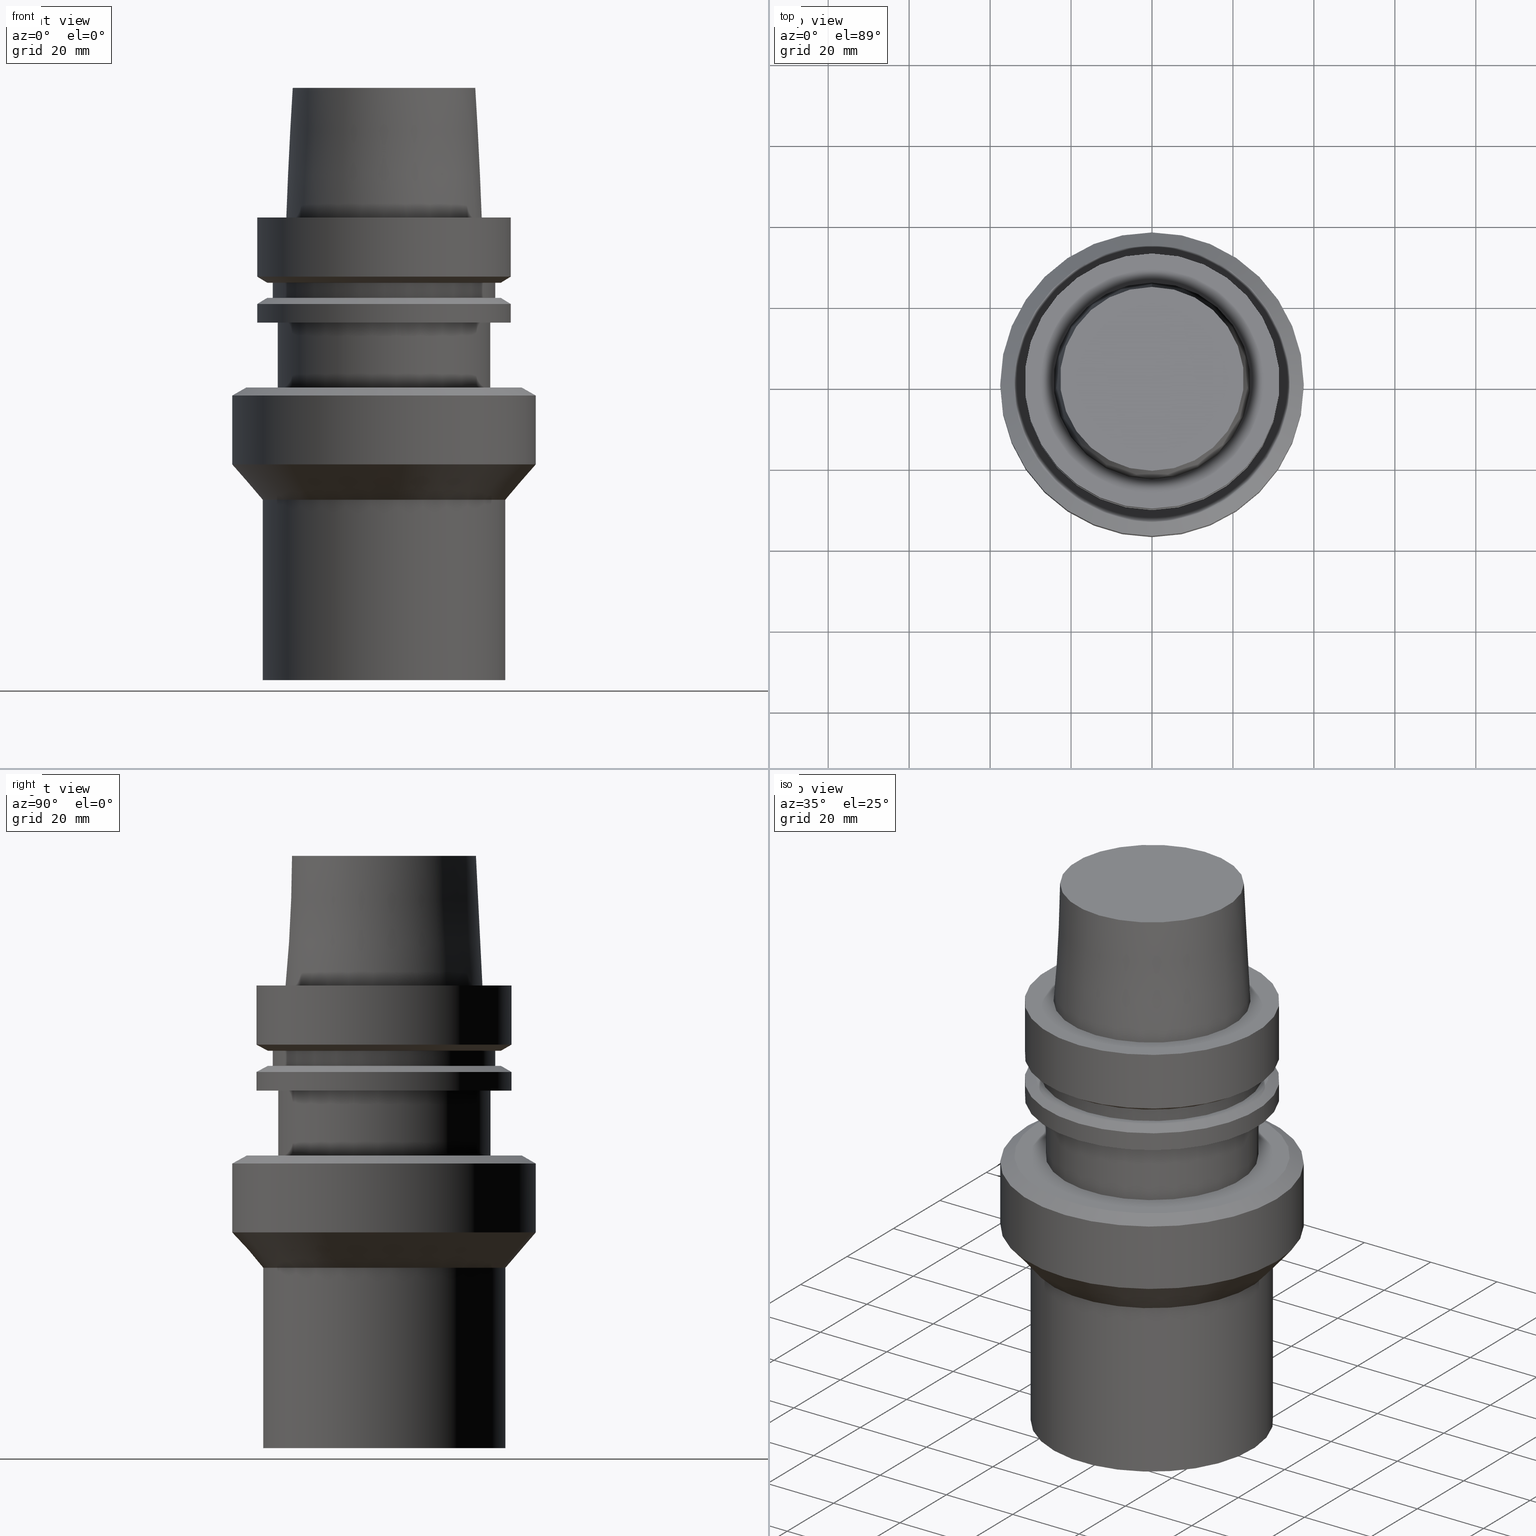
[diagram: canonical four-view strip — front | top / right | iso, engineering-drawing reading convention]
A machine part, canonical four-view strip (front | top / right | iso — engineering-drawing reading convention). The complete STEP part file that produces these views, byte-faithful:
ISO-10303-21;
HEADER;
FILE_DESCRIPTION((''),'1');
FILE_NAME('V:/90_\X2\53D65F9730C730FC30BF\X0\/00_\X2\6DE18DEF30C730FC30BF\X0\/ALL/HSK-BKUS\X2\52A05DE556F3\X0\_201801/HSK-A63-HDC/HSK-A63-HDC1.250-4.5.stp','2018-02-01T05:26:58',(''),(''),'Spatial Interop R21 SP3','Kubotek KeyCreator 2011 V10.0.2 (22737)',' ');
FILE_SCHEMA(('automotive_design'));
ENDSEC;
DATA;
#1=MECHANICAL_DESIGN_GEOMETRIC_PRESENTATION_REPRESENTATION(' ',(#10,#11,#12,#13,#14,#15,#16,#17,#18,#19,#20,#21,#22,#23,#24,#25,#26,#27,#28,#29,#30,#31,#32,#33,#34,#35,#36,#37,#38,#39,#40,#41,#42,#43,#44,#45),#6);
#2=PRODUCT_DEFINITION_CONTEXT('',#46,'design');
#3=APPLICATION_PROTOCOL_DEFINITION('INTERNATIONAL STANDARD','automotive_design',1994,#46);
#4=PRODUCT_CATEGORY_RELATIONSHIP('NONE','NONE',#47,#48);
#5=SHAPE_DEFINITION_REPRESENTATION(#49,#50);
#6= (GEOMETRIC_REPRESENTATION_CONTEXT(3)GLOBAL_UNCERTAINTY_ASSIGNED_CONTEXT((#53))GLOBAL_UNIT_ASSIGNED_CONTEXT((#55,#56,#57))REPRESENTATION_CONTEXT('NONE','WORKSPACE'));
#10=STYLED_ITEM('',(#59),#60);
#11=STYLED_ITEM('',(#61),#62);
#12=STYLED_ITEM('',(#63,#64),#65);
#13=STYLED_ITEM('',(#66,#67),#68);
#14=STYLED_ITEM('',(#69,#70),#71);
#15=STYLED_ITEM('',(#72,#73),#74);
#16=STYLED_ITEM('',(#75),#76);
#17=STYLED_ITEM('',(#77),#78);
#18=STYLED_ITEM('',(#79,#80),#81);
#19=STYLED_ITEM('',(#82,#83),#84);
#20=STYLED_ITEM('',(#85,#86),#87);
#21=STYLED_ITEM('',(#88,#89),#90);
#22=STYLED_ITEM('',(#91,#92),#93);
#23=STYLED_ITEM('',(#94,#95),#96);
#24=STYLED_ITEM('',(#97,#98),#99);
#25=STYLED_ITEM('',(#100),#101);
#26=STYLED_ITEM('',(#102),#103);
#27=STYLED_ITEM('',(#104,#105),#106);
#28=STYLED_ITEM('',(#107),#108);
#29=STYLED_ITEM('',(#109,#110),#111);
#30=STYLED_ITEM('',(#112,#113),#114);
#31=STYLED_ITEM('',(#115),#116);
#32=STYLED_ITEM('',(#117),#118);
#33=STYLED_ITEM('',(#119,#120),#121);
#34=STYLED_ITEM('',(#122),#123);
#35=STYLED_ITEM('',(#124),#125);
#36=STYLED_ITEM('',(#126),#127);
#37=STYLED_ITEM('',(#128,#129),#130);
#38=STYLED_ITEM('',(#131,#132),#133);
#39=STYLED_ITEM('',(#134),#135);
#40=STYLED_ITEM('',(#136,#137),#138);
#41=STYLED_ITEM('',(#139),#140);
#42=STYLED_ITEM('',(#141),#142);
#43=STYLED_ITEM('',(#143,#144),#145);
#44=STYLED_ITEM('',(#146),#147);
#45=STYLED_ITEM('',(#148),#149);
#46=APPLICATION_CONTEXT(' ');
#47=PRODUCT_CATEGORY('part','NONE');
#48=PRODUCT_RELATED_PRODUCT_CATEGORY('detail',' ',(#150));
#49=PRODUCT_DEFINITION_SHAPE('NONE','NONE',#151);
#50=ADVANCED_BREP_SHAPE_REPRESENTATION('Unnamed[1]',(#130,#152),#6);
#53=UNCERTAINTY_MEASURE_WITH_UNIT(LENGTH_MEASURE(1.0E-006),#55,'','');
#55= (CONVERSION_BASED_UNIT('MILLIMETRE',#155)LENGTH_UNIT()NAMED_UNIT(#158));
#56= (NAMED_UNIT(#160)PLANE_ANGLE_UNIT()SI_UNIT($,.RADIAN.));
#57= (NAMED_UNIT(#160)SOLID_ANGLE_UNIT()SI_UNIT($,.STERADIAN.));
#59=PRESENTATION_STYLE_ASSIGNMENT((#166));
#60=EDGE_CURVE('Unnamed[1]',#167,#167,#168,.T.);
#61=PRESENTATION_STYLE_ASSIGNMENT((#169));
#62=EDGE_CURVE('Unnamed[1]',#170,#170,#171,.T.);
#63=PRESENTATION_STYLE_ASSIGNMENT((#172));
#64=PRESENTATION_STYLE_ASSIGNMENT((#173));
#65=ADVANCED_FACE('Unnamed[1]',(#174,#175),#176,.T.);
#66=PRESENTATION_STYLE_ASSIGNMENT((#177));
#67=PRESENTATION_STYLE_ASSIGNMENT((#178));
#68=ADVANCED_FACE('Unnamed[1]',(#179,#180),#181,.T.);
#69=PRESENTATION_STYLE_ASSIGNMENT((#182));
#70=PRESENTATION_STYLE_ASSIGNMENT((#183));
#71=ADVANCED_FACE('Unnamed[1]',(#184),#185,.T.);
#72=PRESENTATION_STYLE_ASSIGNMENT((#186));
#73=PRESENTATION_STYLE_ASSIGNMENT((#187));
#74=ADVANCED_FACE('Unnamed[1]',(#188,#189),#190,.T.);
#75=PRESENTATION_STYLE_ASSIGNMENT((#191));
#76=EDGE_CURVE('Unnamed[1]',#192,#192,#193,.T.);
#77=PRESENTATION_STYLE_ASSIGNMENT((#194));
#78=EDGE_CURVE('Unnamed[1]',#195,#195,#196,.T.);
#79=PRESENTATION_STYLE_ASSIGNMENT((#197));
#80=PRESENTATION_STYLE_ASSIGNMENT((#198));
#81=ADVANCED_FACE('Unnamed[1]',(#199,#200),#201,.T.);
#82=PRESENTATION_STYLE_ASSIGNMENT((#202));
#83=PRESENTATION_STYLE_ASSIGNMENT((#203));
#84=ADVANCED_FACE('Unnamed[1]',(#204,#205),#206,.T.);
#85=PRESENTATION_STYLE_ASSIGNMENT((#207));
#86=PRESENTATION_STYLE_ASSIGNMENT((#208));
#87=ADVANCED_FACE('Unnamed[1]',(#209,#210),#211,.T.);
#88=PRESENTATION_STYLE_ASSIGNMENT((#212));
#89=PRESENTATION_STYLE_ASSIGNMENT((#213));
#90=ADVANCED_FACE('Unnamed[1]',(#214,#215),#216,.T.);
#91=PRESENTATION_STYLE_ASSIGNMENT((#217));
#92=PRESENTATION_STYLE_ASSIGNMENT((#218));
#93=ADVANCED_FACE('Unnamed[1]',(#219,#220),#221,.T.);
#94=PRESENTATION_STYLE_ASSIGNMENT((#222));
#95=PRESENTATION_STYLE_ASSIGNMENT((#223));
#96=ADVANCED_FACE('Unnamed[1]',(#224,#225),#226,.T.);
#97=PRESENTATION_STYLE_ASSIGNMENT((#227));
#98=PRESENTATION_STYLE_ASSIGNMENT((#228));
#99=ADVANCED_FACE('Unnamed[1]',(#229,#230),#231,.T.);
#100=PRESENTATION_STYLE_ASSIGNMENT((#232));
#101=EDGE_CURVE('Unnamed[1]',#233,#233,#234,.T.);
#102=PRESENTATION_STYLE_ASSIGNMENT((#235));
#103=EDGE_CURVE('Unnamed[1]',#236,#236,#237,.T.);
#104=PRESENTATION_STYLE_ASSIGNMENT((#238));
#105=PRESENTATION_STYLE_ASSIGNMENT((#239));
#106=ADVANCED_FACE('Unnamed[1]',(#240,#241),#242,.T.);
#107=PRESENTATION_STYLE_ASSIGNMENT((#243));
#108=EDGE_CURVE('Unnamed[1]',#244,#244,#245,.T.);
#109=PRESENTATION_STYLE_ASSIGNMENT((#246));
#110=PRESENTATION_STYLE_ASSIGNMENT((#247));
#111=ADVANCED_FACE('Unnamed[1]',(#248,#249),#250,.T.);
#112=PRESENTATION_STYLE_ASSIGNMENT((#251));
#113=PRESENTATION_STYLE_ASSIGNMENT((#252));
#114=ADVANCED_FACE('Unnamed[1]',(#253,#254),#255,.T.);
#115=PRESENTATION_STYLE_ASSIGNMENT((#256));
#116=EDGE_CURVE('Unnamed[1]',#257,#257,#258,.T.);
#117=PRESENTATION_STYLE_ASSIGNMENT((#259));
#118=EDGE_CURVE('Unnamed[1]',#260,#260,#261,.T.);
#119=PRESENTATION_STYLE_ASSIGNMENT((#262));
#120=PRESENTATION_STYLE_ASSIGNMENT((#263));
#121=ADVANCED_FACE('Unnamed[1]',(#264,#265),#266,.T.);
#122=PRESENTATION_STYLE_ASSIGNMENT((#267));
#123=EDGE_CURVE('Unnamed[1]',#268,#268,#269,.T.);
#124=PRESENTATION_STYLE_ASSIGNMENT((#270));
#125=EDGE_CURVE('Unnamed[1]',#271,#271,#272,.T.);
#126=PRESENTATION_STYLE_ASSIGNMENT((#273));
#127=EDGE_CURVE('Unnamed[1]',#274,#274,#275,.T.);
#128=PRESENTATION_STYLE_ASSIGNMENT((#276));
#129=PRESENTATION_STYLE_ASSIGNMENT((#277));
#130=MANIFOLD_SOLID_BREP('Unnamed[1]',#278);
#131=PRESENTATION_STYLE_ASSIGNMENT((#279));
#132=PRESENTATION_STYLE_ASSIGNMENT((#280));
#133=ADVANCED_FACE('Unnamed[1]',(#281,#282),#283,.T.);
#134=PRESENTATION_STYLE_ASSIGNMENT((#284));
#135=EDGE_CURVE('Unnamed[1]',#285,#285,#286,.T.);
#136=PRESENTATION_STYLE_ASSIGNMENT((#287));
#137=PRESENTATION_STYLE_ASSIGNMENT((#288));
#138=ADVANCED_FACE('Unnamed[1]',(#289,#290),#291,.T.);
#139=PRESENTATION_STYLE_ASSIGNMENT((#292));
#140=EDGE_CURVE('Unnamed[1]',#293,#293,#294,.T.);
#141=PRESENTATION_STYLE_ASSIGNMENT((#295));
#142=EDGE_CURVE('Unnamed[1]',#296,#296,#297,.T.);
#143=PRESENTATION_STYLE_ASSIGNMENT((#298));
#144=PRESENTATION_STYLE_ASSIGNMENT((#299));
#145=ADVANCED_FACE('Unnamed[1]',(#300),#301,.T.);
#146=PRESENTATION_STYLE_ASSIGNMENT((#302));
#147=EDGE_CURVE('Unnamed[1]',#303,#303,#304,.T.);
#148=PRESENTATION_STYLE_ASSIGNMENT((#305));
#149=EDGE_CURVE('Unnamed[1]',#306,#306,#307,.T.);
#150=PRODUCT('Unnamed[1]','Unnamed[1]','PART-Unnamed[1]-DESC',(#308));
#151=PRODUCT_DEFINITION('NONE','NONE',#309,#2);
#152=AXIS2_PLACEMENT_3D('',#310,#311,#312);
#155=LENGTH_MEASURE_WITH_UNIT(LENGTH_MEASURE(1.0),#313);
#158=DIMENSIONAL_EXPONENTS(1.0,0.0,0.0,0.0,0.0,0.0,0.0);
#160=DIMENSIONAL_EXPONENTS(0.0,0.0,0.0,0.0,0.0,0.0,0.0);
#166=CURVE_STYLE('',#314,POSITIVE_LENGTH_MEASURE(1000.0),#315);
#167=VERTEX_POINT('',#316);
#168=CIRCLE('',#317,27.4999999999989);
#169=CURVE_STYLE('',#318,POSITIVE_LENGTH_MEASURE(1000.0),#319);
#170=VERTEX_POINT('',#320);
#171=CIRCLE('',#321,30.0000000000003);
#172=SURFACE_STYLE_USAGE(.BOTH.,#322);
#173=CURVE_STYLE('',#323,POSITIVE_LENGTH_MEASURE(1000.0),#324);
#174=FACE_BOUND('',#325,.T.);
#175=FACE_BOUND('',#326,.T.);
#176=CONICAL_SURFACE('',#327,33.7500000000002,0.709042058424612);
#177=SURFACE_STYLE_USAGE(.BOTH.,#328);
#178=CURVE_STYLE('',#329,POSITIVE_LENGTH_MEASURE(1000.0),#330);
#179=FACE_BOUND('',#331,.T.);
#180=FACE_BOUND('',#332,.T.);
#181=CONICAL_SURFACE('',#333,30.1987976320959,1.04719755119657);
#182=SURFACE_STYLE_USAGE(.BOTH.,#334);
#183=CURVE_STYLE('',#335,POSITIVE_LENGTH_MEASURE(1000.0),#336);
#184=FACE_OUTER_BOUND('',#337,.T.);
#185=PLANE('',#338);
#186=SURFACE_STYLE_USAGE(.BOTH.,#339);
#187=CURVE_STYLE('',#340,POSITIVE_LENGTH_MEASURE(1000.0),#341);
#188=FACE_BOUND('',#342,.T.);
#189=FACE_BOUND('',#343,.T.);
#190=CYLINDRICAL_SURFACE('',#344,27.4999999999994);
#191=CURVE_STYLE('',#345,POSITIVE_LENGTH_MEASURE(1000.0),#346);
#192=VERTEX_POINT('',#347);
#193=CIRCLE('',#348,31.4999999999998);
#194=CURVE_STYLE('',#349,POSITIVE_LENGTH_MEASURE(1000.0),#350);
#195=VERTEX_POINT('',#351);
#196=CIRCLE('',#352,34.0358983848624);
#197=SURFACE_STYLE_USAGE(.BOTH.,#353);
#198=CURVE_STYLE('',#354,POSITIVE_LENGTH_MEASURE(1000.0),#355);
#199=FACE_BOUND('',#356,.T.);
#200=FACE_BOUND('',#357,.T.);
#201=CYLINDRICAL_SURFACE('',#358,30.0000000000002);
#202=SURFACE_STYLE_USAGE(.BOTH.,#359);
#203=CURVE_STYLE('',#360,POSITIVE_LENGTH_MEASURE(1000.0),#361);
#204=FACE_BOUND('',#362,.T.);
#205=FACE_OUTER_BOUND('',#363,.T.);
#206=PLANE('',#364);
#207=SURFACE_STYLE_USAGE(.BOTH.,#365);
#208=CURVE_STYLE('',#366,POSITIVE_LENGTH_MEASURE(1000.0),#367);
#209=FACE_BOUND('',#368,.T.);
#210=FACE_BOUND('',#369,.T.);
#211=CYLINDRICAL_SURFACE('',#370,37.5000000000001);
#212=SURFACE_STYLE_USAGE(.BOTH.,#371);
#213=CURVE_STYLE('',#372,POSITIVE_LENGTH_MEASURE(1000.0),#373);
#214=FACE_BOUND('',#374,.T.);
#215=FACE_BOUND('',#375,.T.);
#216=CYLINDRICAL_SURFACE('',#376,26.3);
#217=SURFACE_STYLE_USAGE(.BOTH.,#377);
#218=CURVE_STYLE('',#378,POSITIVE_LENGTH_MEASURE(1000.0),#379);
#219=FACE_OUTER_BOUND('',#380,.T.);
#220=FACE_BOUND('',#381,.T.);
#221=PLANE('',#382);
#222=SURFACE_STYLE_USAGE(.BOTH.,#383);
#223=CURVE_STYLE('',#384,POSITIVE_LENGTH_MEASURE(1000.0),#385);
#224=FACE_BOUND('',#386,.T.);
#225=FACE_OUTER_BOUND('',#387,.T.);
#226=PLANE('',#388);
#227=SURFACE_STYLE_USAGE(.BOTH.,#389);
#228=CURVE_STYLE('',#390,POSITIVE_LENGTH_MEASURE(1000.0),#391);
#229=FACE_BOUND('',#392,.T.);
#230=FACE_BOUND('',#393,.T.);
#231=CYLINDRICAL_SURFACE('',#394,31.5);
#232=CURVE_STYLE('',#395,POSITIVE_LENGTH_MEASURE(1000.0),#396);
#233=VERTEX_POINT('',#397);
#234=CIRCLE('',#398,37.5);
#235=CURVE_STYLE('',#399,POSITIVE_LENGTH_MEASURE(1000.0),#400);
#236=VERTEX_POINT('',#401);
#237=CIRCLE('',#402,26.3);
#238=SURFACE_STYLE_USAGE(.BOTH.,#403);
#239=CURVE_STYLE('',#404,POSITIVE_LENGTH_MEASURE(1000.0),#405);
#240=FACE_BOUND('',#406,.T.);
#241=FACE_BOUND('',#407,.T.);
#242=CONICAL_SURFACE('',#408,23.515,0.0499583957219433);
#243=CURVE_STYLE('',#409,POSITIVE_LENGTH_MEASURE(1000.0),#410);
#244=VERTEX_POINT('',#411);
#245=CIRCLE('',#412,30.0);
#246=SURFACE_STYLE_USAGE(.BOTH.,#413);
#247=CURVE_STYLE('',#414,POSITIVE_LENGTH_MEASURE(1000.0),#415);
#248=FACE_OUTER_BOUND('',#416,.T.);
#249=FACE_BOUND('',#417,.T.);
#250=PLANE('',#418);
#251=SURFACE_STYLE_USAGE(.BOTH.,#419);
#252=CURVE_STYLE('',#420,POSITIVE_LENGTH_MEASURE(1000.0),#421);
#253=FACE_BOUND('',#422,.T.);
#254=FACE_BOUND('',#423,.T.);
#255=CYLINDRICAL_SURFACE('',#424,31.4999999999999);
#256=CURVE_STYLE('',#425,POSITIVE_LENGTH_MEASURE(1000.0),#426);
#257=VERTEX_POINT('',#427);
#258=CIRCLE('',#428,31.5000000000001);
#259=CURVE_STYLE('',#429,POSITIVE_LENGTH_MEASURE(1000.0),#430);
#260=VERTEX_POINT('',#431);
#261=CIRCLE('',#432,22.715);
#262=SURFACE_STYLE_USAGE(.BOTH.,#433);
#263=CURVE_STYLE('',#434,POSITIVE_LENGTH_MEASURE(1000.0),#435);
#264=FACE_BOUND('',#436,.T.);
#265=FACE_OUTER_BOUND('',#437,.T.);
#266=PLANE('',#438);
#267=CURVE_STYLE('',#439,POSITIVE_LENGTH_MEASURE(1000.0),#440);
#268=VERTEX_POINT('',#441);
#269=CIRCLE('',#442,26.3);
#270=CURVE_STYLE('',#443,POSITIVE_LENGTH_MEASURE(1000.0),#444);
#271=VERTEX_POINT('',#445);
#272=CIRCLE('',#446,37.5000000000001);
#273=CURVE_STYLE('',#447,POSITIVE_LENGTH_MEASURE(1000.0),#448);
#274=VERTEX_POINT('',#449);
#275=CIRCLE('',#450,28.8975952641919);
#276=SURFACE_STYLE_USAGE(.BOTH.,#451);
#277=CURVE_STYLE('',#452,POSITIVE_LENGTH_MEASURE(1000.0),#453);
#278=CLOSED_SHELL('',(#71,#81,#65,#87,#138,#121,#90,#111,#114,#133,#96,#74,#93,#68,#99,#84,#106,#145));
#279=SURFACE_STYLE_USAGE(.BOTH.,#454);
#280=CURVE_STYLE('',#455,POSITIVE_LENGTH_MEASURE(1000.0),#456);
#281=FACE_BOUND('',#457,.T.);
#282=FACE_BOUND('',#458,.T.);
#283=CONICAL_SURFACE('',#459,30.1987976320959,1.04719755119657);
#284=CURVE_STYLE('',#460,POSITIVE_LENGTH_MEASURE(1000.0),#461);
#285=VERTEX_POINT('',#462);
#286=CIRCLE('',#463,24.315);
#287=SURFACE_STYLE_USAGE(.BOTH.,#464);
#288=CURVE_STYLE('',#465,POSITIVE_LENGTH_MEASURE(1000.0),#466);
#289=FACE_BOUND('',#467,.T.);
#290=FACE_BOUND('',#468,.T.);
#291=CONICAL_SURFACE('',#469,35.7679491924312,1.04719755119662);
#292=CURVE_STYLE('',#470,POSITIVE_LENGTH_MEASURE(1000.0),#471);
#293=VERTEX_POINT('',#472);
#294=CIRCLE('',#473,28.8975952641919);
#295=CURVE_STYLE('',#474,POSITIVE_LENGTH_MEASURE(1000.0),#475);
#296=VERTEX_POINT('',#476);
#297=CIRCLE('',#477,31.5);
#298=SURFACE_STYLE_USAGE(.BOTH.,#478);
#299=CURVE_STYLE('',#479,POSITIVE_LENGTH_MEASURE(1000.0),#480);
#300=FACE_OUTER_BOUND('',#481,.T.);
#301=PLANE('',#482);
#302=CURVE_STYLE('',#483,POSITIVE_LENGTH_MEASURE(1000.0),#484);
#303=VERTEX_POINT('',#485);
#304=CIRCLE('',#486,31.5);
#305=CURVE_STYLE('',#487,POSITIVE_LENGTH_MEASURE(1000.0),#488);
#306=VERTEX_POINT('',#489);
#307=CIRCLE('',#490,27.5);
#308=PRODUCT_CONTEXT('',#46,'mechanical');
#309=PRODUCT_DEFINITION_FORMATION_WITH_SPECIFIED_SOURCE(' ','NONE',#150,.NOT_KNOWN.);
#310=CARTESIAN_POINT('',(0.0,0.0,0.0));
#311=DIRECTION('',(0.0,0.0,1.0));
#312=DIRECTION('',(1.0,0.0,0.0));
#313= (NAMED_UNIT(#158)LENGTH_UNIT()SI_UNIT(.MILLI.,.METRE.));
#314=DRAUGHTING_PRE_DEFINED_CURVE_FONT('continuous');
#315=COLOUR_RGB('',0.0,1.0,0.0);
#316=CARTESIAN_POINT('',(1.21699275665276E-015,27.4999999999989,-19.8750000000013));
#317=AXIS2_PLACEMENT_3D('',#492,#493,#494);
#318=DRAUGHTING_PRE_DEFINED_CURVE_FONT('continuous');
#319=COLOUR_RGB('',0.0,1.0,0.0);
#320=CARTESIAN_POINT('',(4.27050508407832E-015,30.0000000000003,-69.7426406871208));
#321=AXIS2_PLACEMENT_3D('',#495,#496,#497);
#322=SURFACE_SIDE_STYLE('',(#498));
#323=DRAUGHTING_PRE_DEFINED_CURVE_FONT('continuous');
#324=COLOUR_RGB('',0.0,1.0,0.0);
#325=EDGE_LOOP('',(#499));
#326=EDGE_LOOP('',(#500));
#327=AXIS2_PLACEMENT_3D('',#501,#502,#503);
#328=SURFACE_SIDE_STYLE('',(#504));
#329=DRAUGHTING_PRE_DEFINED_CURVE_FONT('continuous');
#330=COLOUR_RGB('',0.0,1.0,0.0);
#331=EDGE_LOOP('',(#505));
#332=EDGE_LOOP('',(#506));
#333=AXIS2_PLACEMENT_3D('',#507,#508,#509);
#334=SURFACE_SIDE_STYLE('',(#510));
#335=DRAUGHTING_PRE_DEFINED_CURVE_FONT('continuous');
#336=COLOUR_RGB('',0.0,1.0,0.0);
#337=EDGE_LOOP('',(#511));
#338=AXIS2_PLACEMENT_3D('',#512,#513,#514);
#339=SURFACE_SIDE_STYLE('',(#515));
#340=DRAUGHTING_PRE_DEFINED_CURVE_FONT('continuous');
#341=COLOUR_RGB('',0.0,1.0,0.0);
#342=EDGE_LOOP('',(#516));
#343=EDGE_LOOP('',(#517));
#344=AXIS2_PLACEMENT_3D('',#518,#519,#520);
#345=DRAUGHTING_PRE_DEFINED_CURVE_FONT('continuous');
#346=COLOUR_RGB('',0.0,1.0,0.0);
#347=CARTESIAN_POINT('',(1.59204083889155E-015,31.4999999999998,-25.9999999999999));
#348=AXIS2_PLACEMENT_3D('',#521,#522,#523);
#349=DRAUGHTING_PRE_DEFINED_CURVE_FONT('continuous');
#350=COLOUR_RGB('',0.0,1.0,0.0);
#351=CARTESIAN_POINT('',(2.571758278207E-015,34.0358983848624,-41.9999999999601));
#352=AXIS2_PLACEMENT_3D('',#524,#525,#526);
#353=SURFACE_SIDE_STYLE('',(#527));
#354=DRAUGHTING_PRE_DEFINED_CURVE_FONT('continuous');
#355=COLOUR_RGB('',0.0,1.0,0.0);
#356=EDGE_LOOP('',(#528));
#357=EDGE_LOOP('',(#529));
#358=AXIS2_PLACEMENT_3D('',#530,#531,#532);
#359=SURFACE_SIDE_STYLE('',(#533));
#360=DRAUGHTING_PRE_DEFINED_CURVE_FONT('continuous');
#361=COLOUR_RGB('',0.0,1.0,0.0);
#362=EDGE_LOOP('',(#534));
#363=EDGE_LOOP('',(#535));
#364=AXIS2_PLACEMENT_3D('',#536,#537,#538);
#365=SURFACE_SIDE_STYLE('',(#539));
#366=DRAUGHTING_PRE_DEFINED_CURVE_FONT('continuous');
#367=COLOUR_RGB('',0.0,1.0,0.0);
#368=EDGE_LOOP('',(#540));
#369=EDGE_LOOP('',(#541));
#370=AXIS2_PLACEMENT_3D('',#542,#543,#544);
#371=SURFACE_SIDE_STYLE('',(#545));
#372=DRAUGHTING_PRE_DEFINED_CURVE_FONT('continuous');
#373=COLOUR_RGB('',0.0,1.0,0.0);
#374=EDGE_LOOP('',(#546));
#375=EDGE_LOOP('',(#547));
#376=AXIS2_PLACEMENT_3D('',#548,#549,#550);
#377=SURFACE_SIDE_STYLE('',(#551));
#378=DRAUGHTING_PRE_DEFINED_CURVE_FONT('continuous');
#379=COLOUR_RGB('',0.0,1.0,0.0);
#380=EDGE_LOOP('',(#552));
#381=EDGE_LOOP('',(#553));
#382=AXIS2_PLACEMENT_3D('',#554,#555,#556);
#383=SURFACE_SIDE_STYLE('',(#557));
#384=DRAUGHTING_PRE_DEFINED_CURVE_FONT('continuous');
#385=COLOUR_RGB('',0.0,1.0,0.0);
#386=EDGE_LOOP('',(#558));
#387=EDGE_LOOP('',(#559));
#388=AXIS2_PLACEMENT_3D('',#560,#561,#562);
#389=SURFACE_SIDE_STYLE('',(#563));
#390=DRAUGHTING_PRE_DEFINED_CURVE_FONT('continuous');
#391=COLOUR_RGB('',0.0,1.0,0.0);
#392=EDGE_LOOP('',(#564));
#393=EDGE_LOOP('',(#565));
#394=AXIS2_PLACEMENT_3D('',#566,#567,#568);
#395=DRAUGHTING_PRE_DEFINED_CURVE_FONT('continuous');
#396=COLOUR_RGB('',0.0,1.0,0.0);
#397=CARTESIAN_POINT('',(2.69422295812172E-015,37.5,-43.9999999999599));
#398=AXIS2_PLACEMENT_3D('',#569,#570,#571);
#399=DRAUGHTING_PRE_DEFINED_CURVE_FONT('continuous');
#400=COLOUR_RGB('',0.0,1.0,0.0);
#401=CARTESIAN_POINT('',(1.59204083889154E-015,26.3,-25.9999999999997));
#402=AXIS2_PLACEMENT_3D('',#572,#573,#574);
#403=SURFACE_SIDE_STYLE('',(#575));
#404=DRAUGHTING_PRE_DEFINED_CURVE_FONT('continuous');
#405=COLOUR_RGB('',0.0,1.0,0.0);
#406=EDGE_LOOP('',(#576));
#407=EDGE_LOOP('',(#577));
#408=AXIS2_PLACEMENT_3D('',#578,#579,#580);
#409=DRAUGHTING_PRE_DEFINED_CURVE_FONT('continuous');
#410=COLOUR_RGB('',0.0,1.0,0.0);
#411=CARTESIAN_POINT('',(6.99885645712725E-015,30.0,-114.300000000002));
#412=AXIS2_PLACEMENT_3D('',#581,#582,#583);
#413=SURFACE_SIDE_STYLE('',(#584));
#414=DRAUGHTING_PRE_DEFINED_CURVE_FONT('continuous');
#415=COLOUR_RGB('',0.0,1.0,0.0);
#416=EDGE_LOOP('',(#585));
#417=EDGE_LOOP('',(#586));
#418=AXIS2_PLACEMENT_3D('',#587,#588,#589);
#419=SURFACE_SIDE_STYLE('',(#590));
#420=DRAUGHTING_PRE_DEFINED_CURVE_FONT('continuous');
#421=COLOUR_RGB('',0.0,1.0,0.0);
#422=EDGE_LOOP('',(#591));
#423=EDGE_LOOP('',(#592));
#424=AXIS2_PLACEMENT_3D('',#593,#594,#595);
#425=DRAUGHTING_PRE_DEFINED_CURVE_FONT('continuous');
#426=COLOUR_RGB('',0.0,1.0,0.0);
#427=CARTESIAN_POINT('',(-3.88267476788467E-031,31.5000000000001,3.85763741731417E-015));
#428=AXIS2_PLACEMENT_3D('',#596,#597,#598);
#429=DRAUGHTING_PRE_DEFINED_CURVE_FONT('continuous');
#430=COLOUR_RGB('',0.0,1.0,0.0);
#431=CARTESIAN_POINT('',(-1.95943487863576E-015,22.715,32.0));
#432=AXIS2_PLACEMENT_3D('',#599,#600,#601);
#433=SURFACE_SIDE_STYLE('',(#602));
#434=DRAUGHTING_PRE_DEFINED_CURVE_FONT('continuous');
#435=COLOUR_RGB('',0.0,1.0,0.0);
#436=EDGE_LOOP('',(#603));
#437=EDGE_LOOP('',(#604));
#438=AXIS2_PLACEMENT_3D('',#605,#606,#607);
#439=DRAUGHTING_PRE_DEFINED_CURVE_FONT('continuous');
#440=COLOUR_RGB('',0.0,1.0,0.0);
#441=CARTESIAN_POINT('',(2.571758278207E-015,26.3,-41.9999999999601));
#442=AXIS2_PLACEMENT_3D('',#608,#609,#610);
#443=DRAUGHTING_PRE_DEFINED_CURVE_FONT('continuous');
#444=COLOUR_RGB('',0.0,1.0,0.0);
#445=CARTESIAN_POINT('',(3.73517273739954E-015,37.5000000000001,-61.0000000000018));
#446=AXIS2_PLACEMENT_3D('',#611,#612,#613);
#447=DRAUGHTING_PRE_DEFINED_CURVE_FONT('continuous');
#448=COLOUR_RGB('',0.0,1.0,0.0);
#449=CARTESIAN_POINT('',(1.21699275665268E-015,28.8975952641919,-19.875));
#450=AXIS2_PLACEMENT_3D('',#614,#615,#616);
#451=SURFACE_SIDE_STYLE('',(#617));
#452=DRAUGHTING_PRE_DEFINED_CURVE_FONT('continuous');
#453=COLOUR_RGB('',0.0,1.0,0.0);
#454=SURFACE_SIDE_STYLE('',(#618));
#455=DRAUGHTING_PRE_DEFINED_CURVE_FONT('continuous');
#456=COLOUR_RGB('',0.0,1.0,0.0);
#457=EDGE_LOOP('',(#619));
#458=EDGE_LOOP('',(#620));
#459=AXIS2_PLACEMENT_3D('',#621,#622,#623);
#460=DRAUGHTING_PRE_DEFINED_CURVE_FONT('continuous');
#461=COLOUR_RGB('',0.0,1.0,0.0);
#462=CARTESIAN_POINT('',(-2.99705514225764E-031,24.315,2.97772869212679E-015));
#463=AXIS2_PLACEMENT_3D('',#624,#625,#626);
#464=SURFACE_SIDE_STYLE('',(#627));
#465=DRAUGHTING_PRE_DEFINED_CURVE_FONT('continuous');
#466=COLOUR_RGB('',0.0,1.0,0.0);
#467=EDGE_LOOP('',(#628));
#468=EDGE_LOOP('',(#629));
#469=AXIS2_PLACEMENT_3D('',#630,#631,#632);
#470=DRAUGHTING_PRE_DEFINED_CURVE_FONT('continuous');
#471=COLOUR_RGB('',0.0,1.0,0.0);
#472=CARTESIAN_POINT('',(9.87371481812551E-016,28.8975952641919,-16.125));
#473=AXIS2_PLACEMENT_3D('',#633,#634,#635);
#474=DRAUGHTING_PRE_DEFINED_CURVE_FONT('continuous');
#475=COLOUR_RGB('',0.0,1.0,0.0);
#476=CARTESIAN_POINT('',(8.95369947681261E-016,31.5,-14.6225009252407));
#477=AXIS2_PLACEMENT_3D('',#636,#637,#638);
#478=SURFACE_SIDE_STYLE('',(#639));
#479=DRAUGHTING_PRE_DEFINED_CURVE_FONT('continuous');
#480=COLOUR_RGB('',0.0,1.0,0.0);
#481=EDGE_LOOP('',(#640));
#482=AXIS2_PLACEMENT_3D('',#641,#642,#643);
#483=DRAUGHTING_PRE_DEFINED_CURVE_FONT('continuous');
#484=COLOUR_RGB('',0.0,1.0,0.0);
#485=CARTESIAN_POINT('',(1.30899429078397E-015,31.5,-21.3774990747592));
#486=AXIS2_PLACEMENT_3D('',#644,#645,#646);
#487=DRAUGHTING_PRE_DEFINED_CURVE_FONT('continuous');
#488=COLOUR_RGB('',0.0,1.0,0.0);
#489=CARTESIAN_POINT('',(9.87371481812537E-016,27.5,-16.1249999999997));
#490=AXIS2_PLACEMENT_3D('',#647,#648,#649);
#492=CARTESIAN_POINT('',(1.21699275665276E-015,2.43398551330552E-015,-19.8750000000013));
#493=DIRECTION('',(-6.12323399573677E-017,-1.22464679914747E-016,1.0));
#494=DIRECTION('',(-1.23259516440788E-032,1.0,1.22464679914747E-016));
#495=CARTESIAN_POINT('',(4.27050508407832E-015,8.54101016815664E-015,-69.7426406871208));
#496=DIRECTION('',(-6.12323399573677E-017,-1.22464679914692E-016,1.0));
#497=DIRECTION('',(-1.23259516440782E-032,1.0,1.22464679914692E-016));
#498=SURFACE_STYLE_FILL_AREA(#650);
#499=ORIENTED_EDGE('',*,*,#125,.F.);
#500=ORIENTED_EDGE('',*,*,#62,.T.);
#501=CARTESIAN_POINT('',(4.00283891073893E-015,8.00567782147786E-015,-65.3713203435613));
#502=DIRECTION('',(-6.12323399573677E-017,-1.22464679914776E-016,1.0));
#503=DIRECTION('',(-1.23259516440782E-032,1.0,1.22464679914776E-016));
#504=SURFACE_STYLE_FILL_AREA(#651);
#505=ORIENTED_EDGE('',*,*,#142,.F.);
#506=ORIENTED_EDGE('',*,*,#140,.T.);
#507=CARTESIAN_POINT('',(9.41370714746907E-016,1.88274142949381E-015,-15.3737504626203));
#508=DIRECTION('',(-6.12323399573677E-017,-1.22464679914785E-016,1.0));
#509=DIRECTION('',(-1.23259516440784E-032,1.0,1.22464679914785E-016));
#510=SURFACE_STYLE_FILL_AREA(#652);
#511=ORIENTED_EDGE('',*,*,#108,.F.);
#512=CARTESIAN_POINT('',(6.99885645712726E-015,15.0,-114.300000000002));
#513=DIRECTION('',(6.12323399573677E-017,1.33859290807699E-014,-1.0));
#514=DIRECTION('',(8.24478912849688E-031,-1.0,-1.33859290807699E-014));
#515=SURFACE_STYLE_FILL_AREA(#653);
#516=ORIENTED_EDGE('',*,*,#149,.F.);
#517=ORIENTED_EDGE('',*,*,#60,.T.);
#518=CARTESIAN_POINT('',(1.10218211923265E-015,2.2043642384653E-015,-18.0000000000005));
#519=DIRECTION('',(-6.12323399573677E-017,-1.22464679914745E-016,1.0));
#520=DIRECTION('',(-1.23259516440786E-032,1.0,1.22464679914745E-016));
#521=CARTESIAN_POINT('',(1.59204083889155E-015,3.1840816777831E-015,-25.9999999999999));
#522=DIRECTION('',(-6.12323399573676E-017,-1.22464679914771E-016,1.0));
#523=DIRECTION('',(-1.23259516440784E-032,1.0,1.22464679914771E-016));
#524=CARTESIAN_POINT('',(2.571758278207E-015,5.14351655641399E-015,-41.9999999999601));
#525=DIRECTION('',(-6.12323399573677E-017,-1.2246467991478E-016,1.0));
#526=DIRECTION('',(-1.23259516440761E-032,1.0,1.2246467991478E-016));
#527=SURFACE_STYLE_FILL_AREA(#654);
#528=ORIENTED_EDGE('',*,*,#62,.F.);
#529=ORIENTED_EDGE('',*,*,#108,.T.);
#530=CARTESIAN_POINT('',(5.63468077060279E-015,1.12693615412056E-014,-92.0213203435615));
#531=DIRECTION('',(-6.12323399573677E-017,-1.22464679914692E-016,1.0));
#532=DIRECTION('',(-1.23259516440782E-032,1.0,1.22464679914692E-016));
#533=SURFACE_STYLE_FILL_AREA(#655);
#534=ORIENTED_EDGE('',*,*,#135,.F.);
#535=ORIENTED_EDGE('',*,*,#116,.T.);
#536=CARTESIAN_POINT('',(-3.43986495507116E-031,27.9075,3.41768305472048E-015));
#537=DIRECTION('',(-6.12323399573677E-017,-1.22464679914735E-016,1.0));
#538=DIRECTION('',(-1.23259516440783E-032,1.0,1.22464679914735E-016));
#539=SURFACE_STYLE_FILL_AREA(#656);
#540=ORIENTED_EDGE('',*,*,#101,.F.);
#541=ORIENTED_EDGE('',*,*,#125,.T.);
#542=CARTESIAN_POINT('',(3.21469784776063E-015,6.42939569552126E-015,-52.4999999999808));
#543=DIRECTION('',(-6.12323399573677E-017,-1.22464679914758E-016,1.0));
#544=DIRECTION('',(-1.23259516440783E-032,1.0,1.22464679914758E-016));
#545=SURFACE_STYLE_FILL_AREA(#657);
#546=ORIENTED_EDGE('',*,*,#103,.F.);
#547=ORIENTED_EDGE('',*,*,#123,.T.);
#548=CARTESIAN_POINT('',(2.08189955854927E-015,4.16379911709853E-015,-33.9999999999799));
#549=DIRECTION('',(-6.12323399573677E-017,-1.22464679914732E-016,1.0));
#550=DIRECTION('',(-1.23259516440797E-032,1.0,1.22464679914732E-016));
#551=SURFACE_STYLE_FILL_AREA(#658);
#552=ORIENTED_EDGE('',*,*,#140,.F.);
#553=ORIENTED_EDGE('',*,*,#149,.T.);
#554=CARTESIAN_POINT('',(9.87371481812544E-016,28.1987976320959,-16.1249999999999));
#555=DIRECTION('',(6.12323399573677E-017,-1.65108768595307E-013,-1.0));
#556=DIRECTION('',(-1.01051690958394E-029,-1.0,1.65108768595307E-013));
#557=SURFACE_STYLE_FILL_AREA(#659);
#558=ORIENTED_EDGE('',*,*,#60,.F.);
#559=ORIENTED_EDGE('',*,*,#127,.T.);
#560=CARTESIAN_POINT('',(1.21699275665272E-015,28.1987976320954,-19.8750000000006));
#561=DIRECTION('',(-6.12323399573677E-017,-9.58463617675421E-013,1.0));
#562=DIRECTION('',(-5.86937972270006E-029,1.0,9.58463617675421E-013));
#563=SURFACE_STYLE_FILL_AREA(#660);
#564=ORIENTED_EDGE('',*,*,#116,.F.);
#565=ORIENTED_EDGE('',*,*,#142,.T.);
#566=CARTESIAN_POINT('',(4.47684973840631E-016,8.95369947681262E-016,-7.31125046262035));
#567=DIRECTION('',(-6.12323399573677E-017,-1.2246467991477E-016,1.0));
#568=DIRECTION('',(-1.23259516440783E-032,1.0,1.2246467991477E-016));
#569=CARTESIAN_POINT('',(2.69422295812172E-015,5.38844591624344E-015,-43.9999999999599));
#570=DIRECTION('',(-6.12323399573677E-017,-1.22464679914758E-016,1.0));
#571=DIRECTION('',(-1.23259516440783E-032,1.0,1.22464679914758E-016));
#572=CARTESIAN_POINT('',(1.59204083889154E-015,3.18408167778308E-015,-25.9999999999997));
#573=DIRECTION('',(-6.12323399573677E-017,-1.22464679914732E-016,1.0));
#574=DIRECTION('',(-1.23259516440797E-032,1.0,1.22464679914732E-016));
#575=SURFACE_STYLE_FILL_AREA(#661);
#576=ORIENTED_EDGE('',*,*,#118,.F.);
#577=ORIENTED_EDGE('',*,*,#135,.T.);
#578=CARTESIAN_POINT('',(-9.79717439317882E-016,-1.95943487863576E-015,16.0));
#579=DIRECTION('',(6.12323399573677E-017,1.22464679914706E-016,-1.0));
#580=DIRECTION('',(-1.2325951644078E-032,1.0,1.22464679914706E-016));
#581=CARTESIAN_POINT('',(6.99885645712725E-015,1.39977129142545E-014,-114.300000000002));
#582=DIRECTION('',(-6.12323399573677E-017,-1.22464679914693E-016,1.0));
#583=DIRECTION('',(-1.23259516440783E-032,1.0,1.22464679914693E-016));
#584=SURFACE_STYLE_FILL_AREA(#662);
#585=ORIENTED_EDGE('',*,*,#76,.F.);
#586=ORIENTED_EDGE('',*,*,#103,.T.);
#587=CARTESIAN_POINT('',(1.59204083889155E-015,28.8999999999999,-25.9999999999998));
#588=DIRECTION('',(6.12323399573677E-017,-4.01871712910924E-014,-1.0));
#589=DIRECTION('',(-2.45592738169036E-030,-1.0,4.01871712910924E-014));
#590=SURFACE_STYLE_FILL_AREA(#663);
#591=ORIENTED_EDGE('',*,*,#147,.F.);
#592=ORIENTED_EDGE('',*,*,#76,.T.);
#593=CARTESIAN_POINT('',(1.45051756483776E-015,2.90103512967552E-015,-23.6887495373796));
#594=DIRECTION('',(-6.12323399573677E-017,-1.2246467991477E-016,1.0));
#595=DIRECTION('',(-1.23259516440783E-032,1.0,1.2246467991477E-016));
#596=CARTESIAN_POINT('',(0.0,0.0,0.0));
#597=DIRECTION('',(-6.12323399573677E-017,-1.2246467991477E-016,1.0));
#598=DIRECTION('',(-1.23259516440783E-032,1.0,1.2246467991477E-016));
#599=CARTESIAN_POINT('',(-1.95943487863576E-015,-3.91886975727153E-015,32.0));
#600=DIRECTION('',(-6.12323399573676E-017,-1.22464679914768E-016,1.0));
#601=DIRECTION('',(-1.23259516440764E-032,1.0,1.22464679914768E-016));
#602=SURFACE_STYLE_FILL_AREA(#664);
#603=ORIENTED_EDGE('',*,*,#123,.F.);
#604=ORIENTED_EDGE('',*,*,#78,.T.);
#605=CARTESIAN_POINT('',(2.571758278207E-015,30.1679491924312,-41.9999999999601));
#606=DIRECTION('',(-6.12323399573677E-017,3.55153774571428E-015,1.0));
#607=DIRECTION('',(2.12641813886231E-031,1.0,-3.55153774571428E-015));
#608=CARTESIAN_POINT('',(2.571758278207E-015,5.14351655641399E-015,-41.9999999999601));
#609=DIRECTION('',(-6.12323399573677E-017,-1.22464679914732E-016,1.0));
#610=DIRECTION('',(-1.23259516440797E-032,1.0,1.22464679914732E-016));
#611=CARTESIAN_POINT('',(3.73517273739954E-015,7.47034547479907E-015,-61.0000000000018));
#612=DIRECTION('',(-6.12323399573677E-017,-1.22464679914757E-016,1.0));
#613=DIRECTION('',(-1.23259516440783E-032,1.0,1.22464679914757E-016));
#614=CARTESIAN_POINT('',(1.21699275665268E-015,2.43398551330536E-015,-19.875));
#615=DIRECTION('',(-6.12323399573677E-017,-1.22464679914689E-016,1.0));
#616=DIRECTION('',(-1.23259516440785E-032,1.0,1.22464679914689E-016));
#617=SURFACE_STYLE_FILL_AREA(#665);
#618=SURFACE_STYLE_FILL_AREA(#666);
#619=ORIENTED_EDGE('',*,*,#127,.F.);
#620=ORIENTED_EDGE('',*,*,#147,.T.);
#621=CARTESIAN_POINT('',(1.26299352371833E-015,2.52598704743665E-015,-20.6262495373796));
#622=DIRECTION('',(6.12323399573677E-017,1.22464679914785E-016,-1.0));
#623=DIRECTION('',(-1.23259516440784E-032,1.0,1.22464679914785E-016));
#624=CARTESIAN_POINT('',(0.0,0.0,0.0));
#625=DIRECTION('',(-6.12323399573677E-017,-1.22464679914714E-016,1.0));
#626=DIRECTION('',(-1.23259516440795E-032,1.0,1.22464679914714E-016));
#627=SURFACE_STYLE_FILL_AREA(#667);
#628=ORIENTED_EDGE('',*,*,#78,.F.);
#629=ORIENTED_EDGE('',*,*,#101,.T.);
#630=CARTESIAN_POINT('',(2.63299061816436E-015,5.26598123632872E-015,-42.99999999996));
#631=DIRECTION('',(6.12323399573676E-017,1.22464679914723E-016,-1.0));
#632=DIRECTION('',(-1.23259516440798E-032,1.0,1.22464679914723E-016));
#633=CARTESIAN_POINT('',(9.87371481812552E-016,1.9747429636251E-015,-16.125));
#634=DIRECTION('',(-6.12323399573677E-017,-1.22464679914689E-016,1.0));
#635=DIRECTION('',(-1.23259516440785E-032,1.0,1.22464679914689E-016));
#636=CARTESIAN_POINT('',(8.95369947681262E-016,1.79073989536252E-015,-14.6225009252407));
#637=DIRECTION('',(-6.12323399573677E-017,-1.2246467991477E-016,1.0));
#638=DIRECTION('',(-1.23259516440783E-032,1.0,1.2246467991477E-016));
#639=SURFACE_STYLE_FILL_AREA(#668);
#640=ORIENTED_EDGE('',*,*,#118,.T.);
#641=CARTESIAN_POINT('',(-1.95943487863576E-015,11.3575,32.0));
#642=DIRECTION('',(-6.12323399573677E-017,9.72362339746437E-016,1.0));
#643=DIRECTION('',(5.47128686183263E-032,1.0,-9.72362339746437E-016));
#644=CARTESIAN_POINT('',(1.30899429078397E-015,2.61798858156794E-015,-21.3774990747592));
#645=DIRECTION('',(-6.12323399573677E-017,-1.2246467991477E-016,1.0));
#646=DIRECTION('',(-1.23259516440783E-032,1.0,1.2246467991477E-016));
#647=CARTESIAN_POINT('',(9.87371481812538E-016,1.97474296362508E-015,-16.1249999999997));
#648=DIRECTION('',(-6.12323399573677E-017,-1.22464679914742E-016,1.0));
#649=DIRECTION('',(-1.23259516440783E-032,1.0,1.22464679914742E-016));
#650=FILL_AREA_STYLE('',(#669));
#651=FILL_AREA_STYLE('',(#670));
#652=FILL_AREA_STYLE('',(#671));
#653=FILL_AREA_STYLE('',(#672));
#654=FILL_AREA_STYLE('',(#673));
#655=FILL_AREA_STYLE('',(#674));
#656=FILL_AREA_STYLE('',(#675));
#657=FILL_AREA_STYLE('',(#676));
#658=FILL_AREA_STYLE('',(#677));
#659=FILL_AREA_STYLE('',(#678));
#660=FILL_AREA_STYLE('',(#679));
#661=FILL_AREA_STYLE('',(#680));
#662=FILL_AREA_STYLE('',(#681));
#663=FILL_AREA_STYLE('',(#682));
#664=FILL_AREA_STYLE('',(#683));
#665=FILL_AREA_STYLE('',(#684));
#666=FILL_AREA_STYLE('',(#685));
#667=FILL_AREA_STYLE('',(#686));
#668=FILL_AREA_STYLE('',(#687));
#669=FILL_AREA_STYLE_COLOUR('',#688);
#670=FILL_AREA_STYLE_COLOUR('',#689);
#671=FILL_AREA_STYLE_COLOUR('',#690);
#672=FILL_AREA_STYLE_COLOUR('',#691);
#673=FILL_AREA_STYLE_COLOUR('',#692);
#674=FILL_AREA_STYLE_COLOUR('',#693);
#675=FILL_AREA_STYLE_COLOUR('',#694);
#676=FILL_AREA_STYLE_COLOUR('',#695);
#677=FILL_AREA_STYLE_COLOUR('',#696);
#678=FILL_AREA_STYLE_COLOUR('',#697);
#679=FILL_AREA_STYLE_COLOUR('',#698);
#680=FILL_AREA_STYLE_COLOUR('',#699);
#681=FILL_AREA_STYLE_COLOUR('',#700);
#682=FILL_AREA_STYLE_COLOUR('',#701);
#683=FILL_AREA_STYLE_COLOUR('',#702);
#684=FILL_AREA_STYLE_COLOUR('',#703);
#685=FILL_AREA_STYLE_COLOUR('',#704);
#686=FILL_AREA_STYLE_COLOUR('',#705);
#687=FILL_AREA_STYLE_COLOUR('',#706);
#688=COLOUR_RGB('',0.0,1.0,0.0);
#689=COLOUR_RGB('',0.0,1.0,0.0);
#690=COLOUR_RGB('',0.0,1.0,0.0);
#691=COLOUR_RGB('',0.0,1.0,0.0);
#692=COLOUR_RGB('',0.0,1.0,0.0);
#693=COLOUR_RGB('',0.0,1.0,0.0);
#694=COLOUR_RGB('',0.0,1.0,0.0);
#695=COLOUR_RGB('',0.0,1.0,0.0);
#696=COLOUR_RGB('',0.0,1.0,0.0);
#697=COLOUR_RGB('',0.0,1.0,0.0);
#698=COLOUR_RGB('',0.0,1.0,0.0);
#699=COLOUR_RGB('',0.0,1.0,0.0);
#700=COLOUR_RGB('',0.0,1.0,0.0);
#701=COLOUR_RGB('',0.0,1.0,0.0);
#702=COLOUR_RGB('',0.0,1.0,0.0);
#703=COLOUR_RGB('',0.0,1.0,0.0);
#704=COLOUR_RGB('',0.0,1.0,0.0);
#705=COLOUR_RGB('',0.0,1.0,0.0);
#706=COLOUR_RGB('',0.0,1.0,0.0);
ENDSEC;
END-ISO-10303-21;
